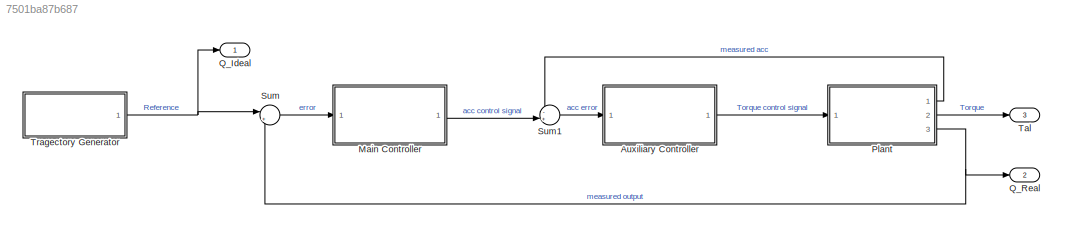
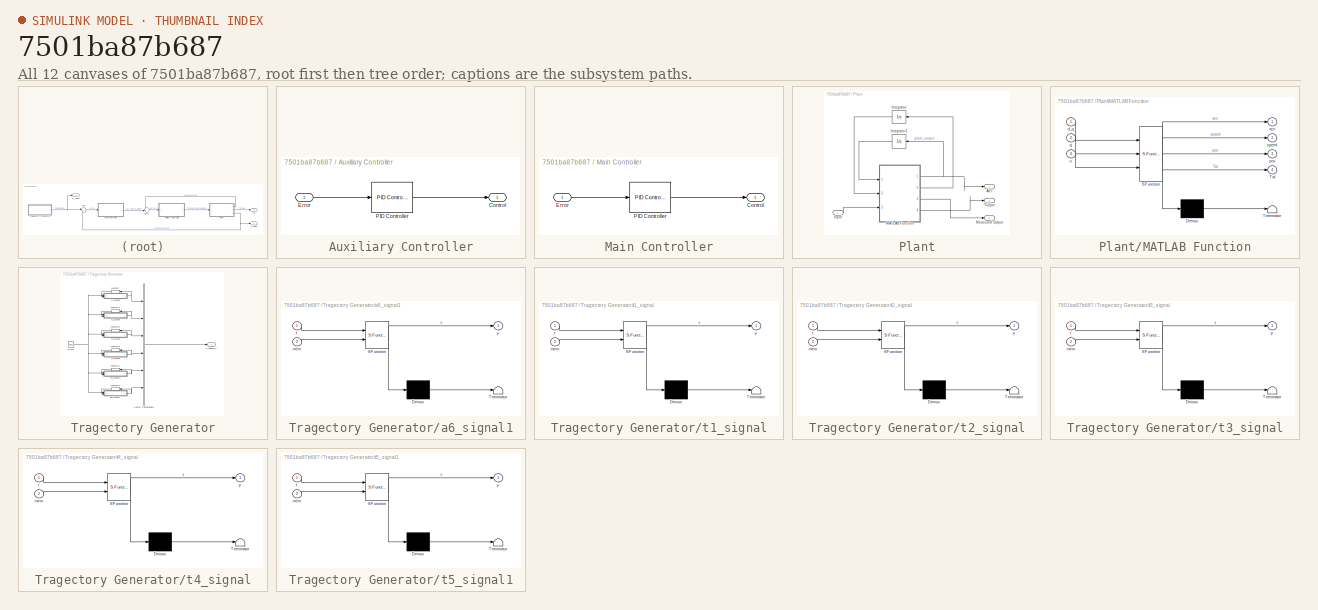
[diagram: thumbnail index - all 12 canvases of the model, root first then tree order]
MODEL slx_7501ba87b687
KIND model
CONFIG AbsTol = auto
CONFIG EnableMultiTasking = on
CONFIG FixedStep = auto
CONFIG MaxStep = 0.01
CONFIG MinStep = auto
CONFIG RelTol = 1e-4
CONFIG SampleTimeConstraint = Unconstrained
CONFIG Solver = VariableStepAuto
CONFIG SolverName = VariableStepAuto
CONFIG StartTime = 0.0
CONFIG StopTime = 3.2
BLOCK [SubSystem] Auxiliary Controller
  Ports = [1, 1]
  RequestExecContextInheritance = off
  Variant = off
BLOCK [Outport] Auxiliary Controller/Control
  IconDisplay = Port number
  PortDimensions = n_juncoes
BLOCK [Inport] Auxiliary Controller/Error
  IconDisplay = Port number
  PortDimensions = n_juncoes
BLOCK [Reference] Auxiliary Controller/PID Controller  REF=simulink/Continuous/PID Controller
  Ports = [1, 1]
  SourceBlock = simulink/Continuous/PID Controller
  SourceProductBaseCode = SL
  SourceProductName = Simulink
  SourceType = PID 1dof
BLOCK [SubSystem] Main Controller
  Ports = [1, 1]
  RequestExecContextInheritance = off
  Variant = off
BLOCK [Outport] Main Controller/Control
  IconDisplay = Port number
  PortDimensions = n_juncoes
BLOCK [Inport] Main Controller/Error
  IconDisplay = Port number
  PortDimensions = n_juncoes
BLOCK [Reference] Main Controller/PID Controller  REF=simulink/Continuous/PID Controller
  Ports = [1, 1]
  SourceBlock = simulink/Continuous/PID Controller
  SourceProductBaseCode = SL
  SourceProductName = Simulink
  SourceType = PID 1dof
BLOCK [SubSystem] Plant
  Ports = [1, 3]
  RequestExecContextInheritance = off
  Variant = off
BLOCK [Outport] Plant/Acc
  IconDisplay = Port number
BLOCK [Inport] Plant/Input
  IconDisplay = Port number
  PortDimensions = n_juncoes
BLOCK [Integrator] Plant/Integrator
  InitialCondition = Q0
  Ports = [1, 1]
BLOCK [Integrator] Plant/Integrator1
  InitialCondition = zeros(n_juncoes, 1)
  Ports = [1, 1]
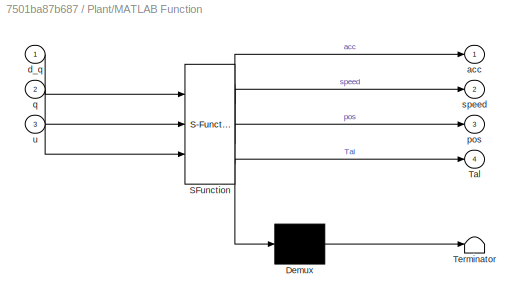
BLOCK [SubSystem] Plant/MATLAB Function
  ErrorFcn = Stateflow.Translate.translate
  PermitHierarchicalResolution = ExplicitOnly
  Ports = [3, 4]
  RequestExecContextInheritance = off
  SFBlockType = MATLAB Function
  TreatAsAtomicUnit = on
  Variant = off
BLOCK [Demux] Plant/MATLAB Function/ Demux 
  Outputs = 1
  Ports = [1, 1]
BLOCK [S-Function] Plant/MATLAB Function/ SFunction 
  EnableBusSupport = on
  FunctionName = sf_sfun
  PortCounts = [3 5]
  Ports = [3, 5]
  SFcnIsStateOwnerBlock = off
  SFunctionDeploymentMode = off
  Tag = Stateflow S-Function sim_sys_puma 2
BLOCK [Terminator] Plant/MATLAB Function/ Terminator 
BLOCK [Outport] Plant/MATLAB Function/Tal
  IconDisplay = Port number
  Port = 4
BLOCK [Outport] Plant/MATLAB Function/acc
  IconDisplay = Port number
BLOCK [Inport] Plant/MATLAB Function/d_q
  IconDisplay = Port number
BLOCK [Outport] Plant/MATLAB Function/pos
  IconDisplay = Port number
  Port = 3
BLOCK [Inport] Plant/MATLAB Function/q
  IconDisplay = Port number
  Port = 2
BLOCK [Outport] Plant/MATLAB Function/speed
  IconDisplay = Port number
  Port = 2
BLOCK [Inport] Plant/MATLAB Function/u
  IconDisplay = Port number
  Port = 3
BLOCK [Outport] Plant/Measured Output
  IconDisplay = Port number
  Port = 3
  PortDimensions = n_juncoes
BLOCK [Outport] Plant/Torque
  IconDisplay = Port number
  Port = 2
  PortDimensions = n_juncoes
BLOCK [Outport] Q_Ideal
  IconDisplay = Port number
BLOCK [Outport] Q_Real
  IconDisplay = Port number
  Port = 2
BLOCK [Sum] Sum
  IconShape = round
  InputSameDT = off
  Inputs = |+-
  OutDataTypeStr = Inherit: Inherit via internal rule
  Ports = [2, 1]
  SaturateOnIntegerOverflow = off
BLOCK [Sum] Sum1
  IconShape = round
  InputSameDT = off
  Inputs = -+|
  OutDataTypeStr = Inherit: Inherit via internal rule
  Ports = [2, 1]
  SaturateOnIntegerOverflow = off
BLOCK [Outport] Tal
  IconDisplay = Port number
  Port = 3
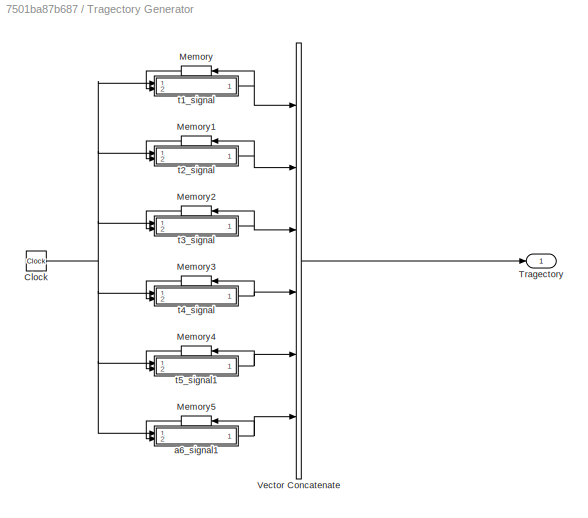
BLOCK [SubSystem] Tragectory Generator
  Ports = [0, 1]
  RequestExecContextInheritance = off
  Variant = off
BLOCK [Clock] Tragectory Generator/Clock
BLOCK [Memory] Tragectory Generator/Memory
  X0 = Q0(1)
BLOCK [Memory] Tragectory Generator/Memory1
  X0 = Q0(2)
BLOCK [Memory] Tragectory Generator/Memory2
  X0 = Q0(3)
BLOCK [Memory] Tragectory Generator/Memory3
  X0 = Q0(4)
BLOCK [Memory] Tragectory Generator/Memory4
  X0 = Q0(3)
BLOCK [Memory] Tragectory Generator/Memory5
  X0 = Q0(4)
BLOCK [Outport] Tragectory Generator/Tragectory
  IconDisplay = Port number
BLOCK [Concatenate] Tragectory Generator/Vector Concatenate
  NumInputs = 6
  Ports = [6, 1]
BLOCK [SubSystem] Tragectory Generator/a6_signal1
  ErrorFcn = Stateflow.Translate.translate
  PermitHierarchicalResolution = ExplicitOnly
  Ports = [2, 1]
  RequestExecContextInheritance = off
  SFBlockType = MATLAB Function
  TreatAsAtomicUnit = on
  Variant = off
BLOCK [Demux] Tragectory Generator/a6_signal1/ Demux 
  Outputs = 1
  Ports = [1, 1]
BLOCK [S-Function] Tragectory Generator/a6_signal1/ SFunction 
  EnableBusSupport = on
  FunctionName = sf_sfun
  PortCounts = [2 2]
  Ports = [2, 2]
  SFcnIsStateOwnerBlock = off
  SFunctionDeploymentMode = off
  Tag = Stateflow S-Function sim_sys_puma 3
BLOCK [Terminator] Tragectory Generator/a6_signal1/ Terminator 
BLOCK [Inport] Tragectory Generator/a6_signal1/mem
  IconDisplay = Port number
  Port = 2
BLOCK [Inport] Tragectory Generator/a6_signal1/t
  IconDisplay = Port number
BLOCK [Outport] Tragectory Generator/a6_signal1/y
  IconDisplay = Port number
BLOCK [SubSystem] Tragectory Generator/t1_signal
  ErrorFcn = Stateflow.Translate.translate
  PermitHierarchicalResolution = ExplicitOnly
  Ports = [2, 1]
  RequestExecContextInheritance = off
  SFBlockType = MATLAB Function
  TreatAsAtomicUnit = on
  Variant = off
BLOCK [Demux] Tragectory Generator/t1_signal/ Demux 
  Outputs = 1
  Ports = [1, 1]
BLOCK [S-Function] Tragectory Generator/t1_signal/ SFunction 
  EnableBusSupport = on
  FunctionName = sf_sfun
  PortCounts = [2 2]
  Ports = [2, 2]
  SFcnIsStateOwnerBlock = off
  SFunctionDeploymentMode = off
  Tag = Stateflow S-Function sim_sys_puma 7
BLOCK [Terminator] Tragectory Generator/t1_signal/ Terminator 
BLOCK [Inport] Tragectory Generator/t1_signal/mem
  IconDisplay = Port number
  Port = 2
BLOCK [Inport] Tragectory Generator/t1_signal/t
  IconDisplay = Port number
BLOCK [Outport] Tragectory Generator/t1_signal/y
  IconDisplay = Port number
BLOCK [SubSystem] Tragectory Generator/t2_signal
  ErrorFcn = Stateflow.Translate.translate
  PermitHierarchicalResolution = ExplicitOnly
  Ports = [2, 1]
  RequestExecContextInheritance = off
  SFBlockType = MATLAB Function
  TreatAsAtomicUnit = on
  Variant = off
BLOCK [Demux] Tragectory Generator/t2_signal/ Demux 
  Outputs = 1
  Ports = [1, 1]
BLOCK [S-Function] Tragectory Generator/t2_signal/ SFunction 
  EnableBusSupport = on
  FunctionName = sf_sfun
  PortCounts = [2 2]
  Ports = [2, 2]
  SFcnIsStateOwnerBlock = off
  SFunctionDeploymentMode = off
  Tag = Stateflow S-Function sim_sys_puma 8
BLOCK [Terminator] Tragectory Generator/t2_signal/ Terminator 
BLOCK [Inport] Tragectory Generator/t2_signal/mem
  IconDisplay = Port number
  Port = 2
BLOCK [Inport] Tragectory Generator/t2_signal/t
  IconDisplay = Port number
BLOCK [Outport] Tragectory Generator/t2_signal/y
  IconDisplay = Port number
BLOCK [SubSystem] Tragectory Generator/t3_signal
  ErrorFcn = Stateflow.Translate.translate
  PermitHierarchicalResolution = ExplicitOnly
  Ports = [2, 1]
  RequestExecContextInheritance = off
  SFBlockType = MATLAB Function
  TreatAsAtomicUnit = on
  Variant = off
BLOCK [Demux] Tragectory Generator/t3_signal/ Demux 
  Outputs = 1
  Ports = [1, 1]
BLOCK [S-Function] Tragectory Generator/t3_signal/ SFunction 
  EnableBusSupport = on
  FunctionName = sf_sfun
  PortCounts = [2 2]
  Ports = [2, 2]
  SFcnIsStateOwnerBlock = off
  SFunctionDeploymentMode = off
  Tag = Stateflow S-Function sim_sys_puma 6
BLOCK [Terminator] Tragectory Generator/t3_signal/ Terminator 
BLOCK [Inport] Tragectory Generator/t3_signal/mem
  IconDisplay = Port number
  Port = 2
BLOCK [Inport] Tragectory Generator/t3_signal/t
  IconDisplay = Port number
BLOCK [Outport] Tragectory Generator/t3_signal/y
  IconDisplay = Port number
BLOCK [SubSystem] Tragectory Generator/t4_signal
  ErrorFcn = Stateflow.Translate.translate
  PermitHierarchicalResolution = ExplicitOnly
  Ports = [2, 1]
  RequestExecContextInheritance = off
  SFBlockType = MATLAB Function
  TreatAsAtomicUnit = on
  Variant = off
BLOCK [Demux] Tragectory Generator/t4_signal/ Demux 
  Outputs = 1
  Ports = [1, 1]
BLOCK [S-Function] Tragectory Generator/t4_signal/ SFunction 
  EnableBusSupport = on
  FunctionName = sf_sfun
  PortCounts = [2 2]
  Ports = [2, 2]
  SFcnIsStateOwnerBlock = off
  SFunctionDeploymentMode = off
  Tag = Stateflow S-Function sim_sys_puma 9
BLOCK [Terminator] Tragectory Generator/t4_signal/ Terminator 
BLOCK [Inport] Tragectory Generator/t4_signal/mem
  IconDisplay = Port number
  Port = 2
BLOCK [Inport] Tragectory Generator/t4_signal/t
  IconDisplay = Port number
BLOCK [Outport] Tragectory Generator/t4_signal/y
  IconDisplay = Port number
BLOCK [SubSystem] Tragectory Generator/t5_signal1
  ErrorFcn = Stateflow.Translate.translate
  PermitHierarchicalResolution = ExplicitOnly
  Ports = [2, 1]
  RequestExecContextInheritance = off
  SFBlockType = MATLAB Function
  TreatAsAtomicUnit = on
  Variant = off
BLOCK [Demux] Tragectory Generator/t5_signal1/ Demux 
  Outputs = 1
  Ports = [1, 1]
BLOCK [S-Function] Tragectory Generator/t5_signal1/ SFunction 
  EnableBusSupport = on
  FunctionName = sf_sfun
  PortCounts = [2 2]
  Ports = [2, 2]
  SFcnIsStateOwnerBlock = off
  SFunctionDeploymentMode = off
  Tag = Stateflow S-Function sim_sys_puma 1
BLOCK [Terminator] Tragectory Generator/t5_signal1/ Terminator 
BLOCK [Inport] Tragectory Generator/t5_signal1/mem
  IconDisplay = Port number
  Port = 2
BLOCK [Inport] Tragectory Generator/t5_signal1/t
  IconDisplay = Port number
BLOCK [Outport] Tragectory Generator/t5_signal1/y
  IconDisplay = Port number
LINE Auxiliary Controller/Error:1 -> Auxiliary Controller/PID Controller:1
LINE Auxiliary Controller/PID Controller:1 -> Auxiliary Controller/Control:1
LINE Auxiliary Controller:1 -> Plant:1
LINE Main Controller/Error:1 -> Main Controller/PID Controller:1
LINE Main Controller/PID Controller:1 -> Main Controller/Control:1
LINE Main Controller:1 -> Sum1:2
LINE Plant/Input:1 -> Plant/MATLAB Function:3
LINE Plant/Integrator1:1 -> Plant/MATLAB Function:1
LINE Plant/Integrator:1 -> Plant/MATLAB Function:2
NET Plant/MATLAB Function:1 -> Plant/Acc:1, Plant/Integrator1:1
LINE Plant/MATLAB Function:2 -> Plant/Integrator:1
LINE Plant/MATLAB Function:3 -> Plant/Measured Output:1
LINE Plant/MATLAB Function:4 -> Plant/Torque:1
LINE Plant:1 -> Sum1:1
LINE Plant:2 -> Tal:1
NET Plant:3 -> Q_Real:1, Sum:2
LINE Sum1:1 -> Auxiliary Controller:1
LINE Sum:1 -> Main Controller:1
NET Tragectory Generator/Clock:1 -> Tragectory Generator/a6_signal1:1, Tragectory Generator/t1_signal:1, Tragectory Generator/t2_signal:1, Tragectory Generator/t3_signal:1, Tragectory Generator/t4_signal:1, Tragectory Generator/t5_signal1:1
LINE Tragectory Generator/Memory1:1 -> Tragectory Generator/t2_signal:2
LINE Tragectory Generator/Memory2:1 -> Tragectory Generator/t3_signal:2
LINE Tragectory Generator/Memory3:1 -> Tragectory Generator/t4_signal:2
LINE Tragectory Generator/Memory4:1 -> Tragectory Generator/t5_signal1:2
LINE Tragectory Generator/Memory5:1 -> Tragectory Generator/a6_signal1:2
LINE Tragectory Generator/Memory:1 -> Tragectory Generator/t1_signal:2
LINE Tragectory Generator/Vector Concatenate:1 -> Tragectory Generator/Tragectory:1
NET Tragectory Generator/a6_signal1:1 -> Tragectory Generator/Memory5:1, Tragectory Generator/Vector Concatenate:6
NET Tragectory Generator/t1_signal:1 -> Tragectory Generator/Memory:1, Tragectory Generator/Vector Concatenate:1
NET Tragectory Generator/t2_signal:1 -> Tragectory Generator/Memory1:1, Tragectory Generator/Vector Concatenate:2
NET Tragectory Generator/t3_signal:1 -> Tragectory Generator/Memory2:1, Tragectory Generator/Vector Concatenate:3
NET Tragectory Generator/t4_signal:1 -> Tragectory Generator/Memory3:1, Tragectory Generator/Vector Concatenate:4
NET Tragectory Generator/t5_signal1:1 -> Tragectory Generator/Memory4:1, Tragectory Generator/Vector Concatenate:5
NET Tragectory Generator:1 -> Q_Ideal:1, Sum:1
note: NET lines group one-source signal fan-out (src -> all destinations, sorted); 1:1 wires keep LINE
CHART Tragectory Generator/t5_signal1 states=1 transitions=1
  STATE_LABEL 'eML_blk_kernel()'
  STATE_LABEL 'SCRIPT:\nfunction y = fcn(t,mem)\n    \n    tempos = [\n        [     0,     1]\n        [ 11/10, 21/10]\n        [  11/5,  16/5]\n    ];\n\n    period = max(max(tempos));\n    t = mod(t,period);\n    \n    c = [\n        [ 0, 0, 0, 0, 0, 0]\n        [ 0, 0, 0, 0, 0, 0]\n        [ 0, 0, 0, 0, 0, 0]\n    ];\n\n    i = 0;\n    \n    for j=1:size(tempos,1)\n        if(t >= tempos(j,1))\n            if t<= tempos(j,2)\n    ...<+221ch>'
CHART Plant/MATLAB Function states=1 transitions=1
  STATE_LABEL 'eML_blk_kernel()'
  STATE_LABEL 'SCRIPT:\nfunction [acc, speed, pos, Tal] = system(d_q, q, u)\n\n    t1 = q(1);\n    t2 = q(2);\n    t3 = q(3);\n    t4 = q(4);\n    t5 = q(5);\n    a6 = q(6);\n    w1 = d_q(1);\n    w2 = d_q(2);\n    w3 = d_q(3);\n    w4 = d_q(4);\n    w5 = d_q(5);\n    w6 = d_q(6);\n    \n    D = [\n        [  (93*sin(t3 + t4 + t5))/2500 + (96*sin(t3 + t4))/125 + (36*cos(t3))/25 + (32*sin(t3 + t4)^2)/25 + (12*cos(t3)^2)/5 + (31*s...<+3608ch>'
CHART Tragectory Generator/a6_signal1 states=1 transitions=1
  STATE_LABEL 'eML_blk_kernel()'
  STATE_LABEL 'SCRIPT:\nfunction y = fcn(t,mem)\n    \n    tempos = [\n        [     0,     1]\n        [ 11/10, 21/10]\n        [  11/5,  16/5]\n    ];\n\n    period = max(max(tempos));\n    t = mod(t,period);\n    \n    c = [\n        [ 0, 0, 0, 0, 0, 0]\n        [ 0, 0, 0, 0, 0, 0]\n        [ 0, 0, 0, 0, 0, 0]\n    ];\n\n    i = 0;\n    \n    for j=1:size(tempos,1)\n        if(t >= tempos(j,1))\n            if t<= tempos(j,2)\n    ...<+221ch>'
CHART Tragectory Generator/t3_signal states=1 transitions=1
  STATE_LABEL 'eML_blk_kernel()'
  STATE_LABEL 'SCRIPT:\nfunction y = fcn(t,mem)\n    \n    tempos = [\n        [     0,     1]\n        [ 11/10, 21/10]\n        [  11/5,  16/5]\n    ];\n\n    period = max(max(tempos));\n    t = mod(t,period);\n    \n    c = [\n        [ 6643266975759255/4503599627370496,                                0,                                 0, -829151420652521/562949953421312,  2487454261957563/1125899906842624, -39799268191321...<+782ch>'
CHART Tragectory Generator/t1_signal states=1 transitions=1
  STATE_LABEL 'eML_blk_kernel()'
  STATE_LABEL 'SCRIPT:\nfunction y = fcn(t, mem)\n    \n    tempos = [\n        [     0,     1]\n        [ 11/10, 21/10]\n        [  11/5,  16/5]\n    ];\n\n    period = max(max(tempos));\n    t = mod(t,period);\n    \n    c = [\n        [ -884279719006747/562949953421312,                              0,                               0, 6084582650169709/1125899906842624, -2281718493813641/281474976710656,  7301499180203651/2...<+767ch>'
CHART Tragectory Generator/t2_signal states=1 transitions=1
  STATE_LABEL 'eML_blk_kernel()'
  STATE_LABEL 'SCRIPT:\nfunction y = fcn(t,mem)\n    \n    tempos = [\n        [     0,     1]\n        [ 11/10, 21/10]\n        [  11/5,  16/5]\n    ];\n\n    period = max(max(tempos));\n    t = mod(t,period);\n    \n    c = [\n        [ 811458320100571/281474976710656,                                 0,                                0, -6451440309747949/4503599627370496, 4838580232310961/2251799813685248,  -38708641858487...<+782ch>'
CHART Tragectory Generator/t4_signal states=1 transitions=1
  STATE_LABEL 'eML_blk_kernel()'
  STATE_LABEL 'SCRIPT:\nfunction y = fcn(t,mem)\n    \n    tempos = [\n        [     0,     1]\n        [ 11/10, 21/10]\n        [  11/5,  16/5]\n    ];\n\n    period = max(max(tempos));\n    t = mod(t,period);\n    \n    c = [\n        [ -6021299811766973/2251799813685248,                                 0,                                  0,  1121232153837545/140737488355328,  -6727392923025269/562949953421312,  5381914338...<+794ch>'
